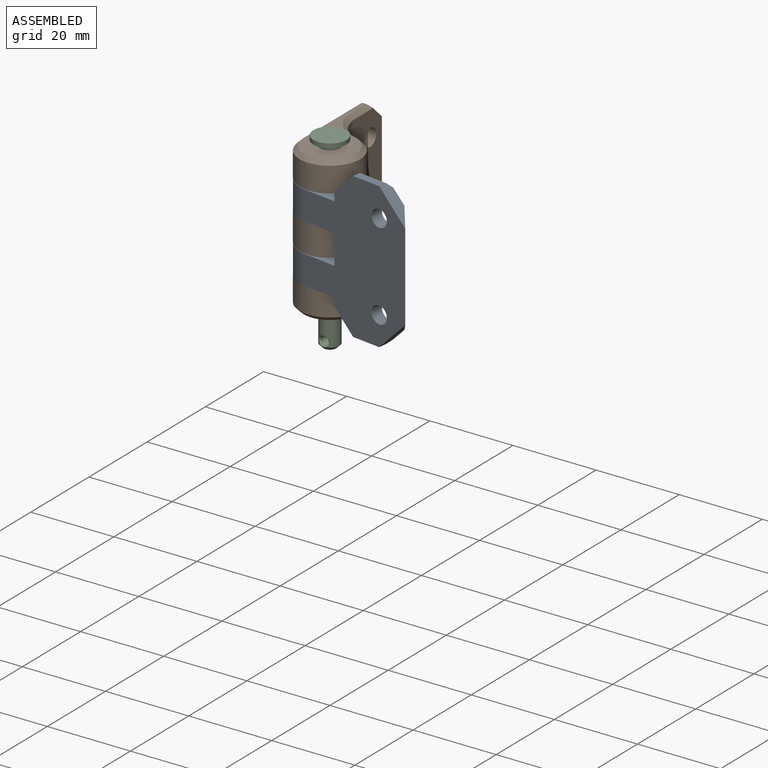
[diagram: assembled view]
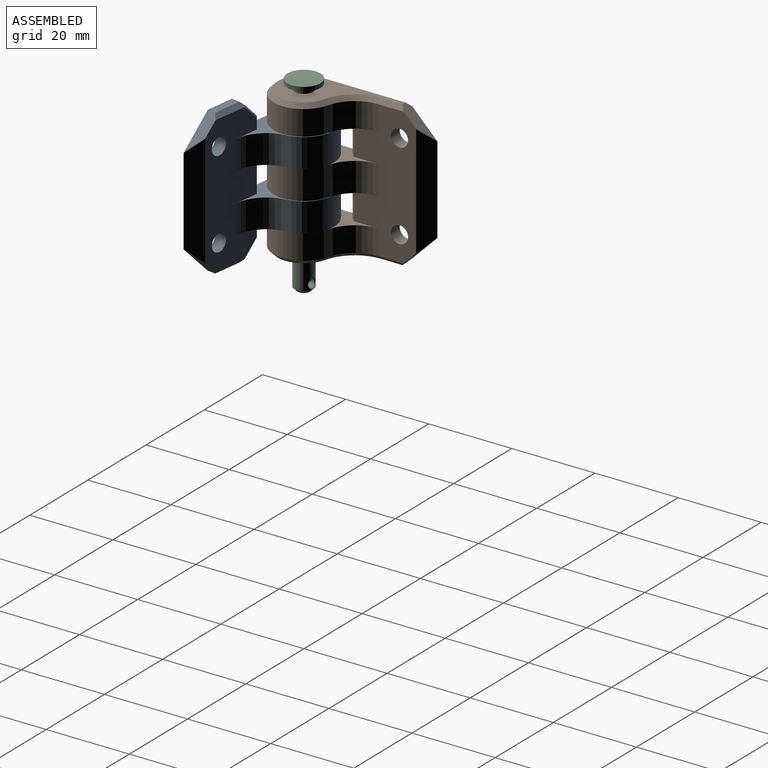
[diagram: assembled view, second angle]
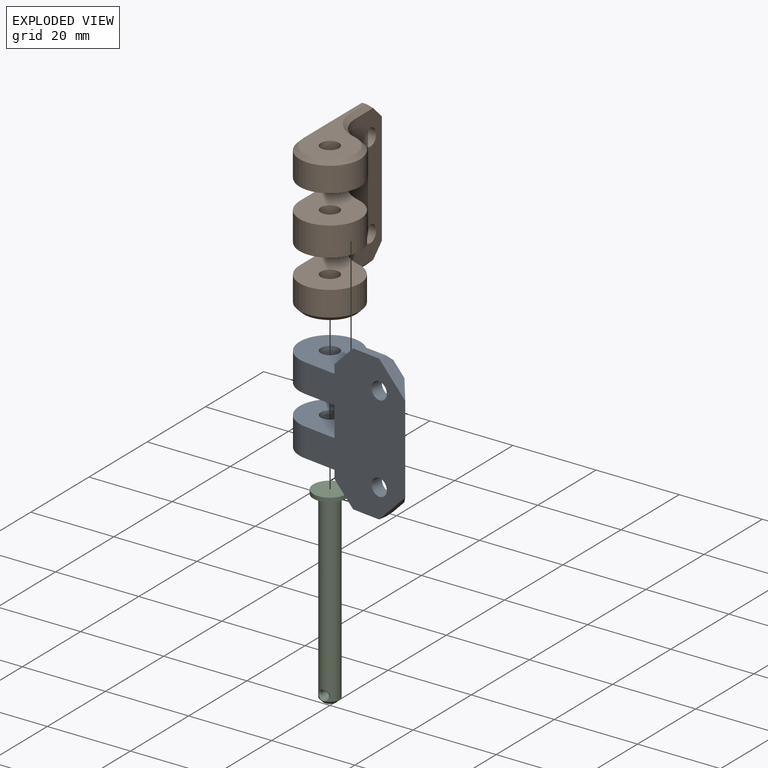
[diagram: exploded view]
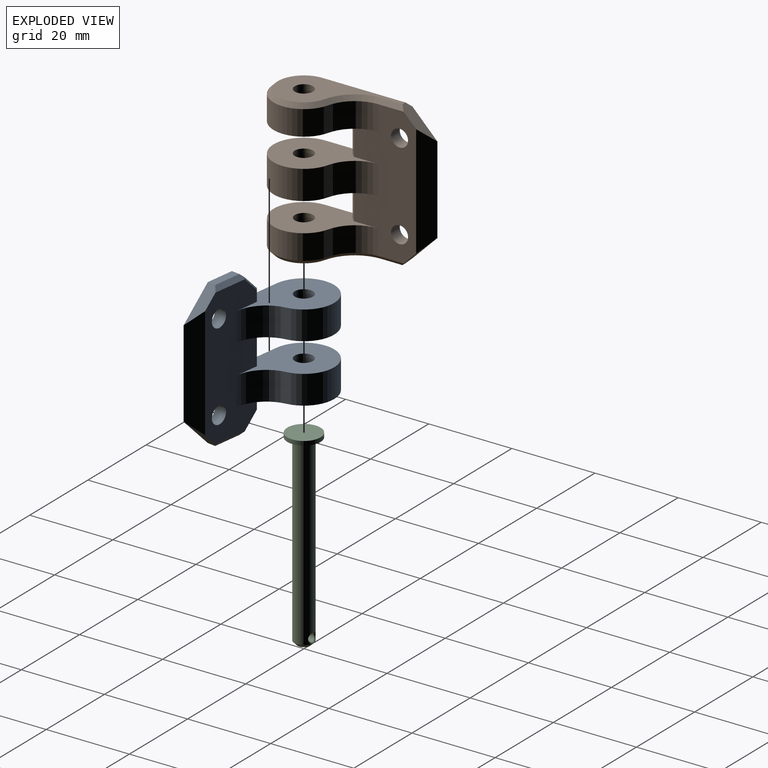
[diagram: exploded view, second angle]
ASSEMBLY  parts=3 mates=2
PART A: 31 faces, bbox 34.3x14.6x35 mm
  f0: plane 35x27mm, normal (0,1,0), area 675mm2, adj f2,f3,f4,f5,f6,f7,f8,f9
  f1: plane 33x15mm, normal (0,-1,0), area 366.4mm2, adj f8,f9,f11,f12,f13,f14,f17,f18
  f2: plane 2x2mm, normal (1,0,0), area 4mm2, adj f0,f12,f22,f27
  f3: plane 7.1x2mm, normal (1,0,0), area 14.2mm2, adj f0,f9,f11,f17
  f4: plane 7x2mm, normal (0,0,1), area 14mm2, adj f0,f19,f23,f26
  f5: plane 7x2mm, normal (0,0,-1), area 14mm2, adj f0,f21,f24,f27
  f6: plane 2.1x2mm, normal (1,0,0), area 4.2mm2, adj f0,f8,f18,f26
  f7: cylinder r=7.3mm len=14.6mm, axis (0,0,-1), area 225.1mm2, adj f0,f8,f9,f14
  f8: plane 22.15x14.6mm, normal (0,0,1), area 177.2mm2, adj f0,f1,f6,f7,f14,f16,f18
  f9: plane 22.15x14.6mm, normal (0,0,-1), area 177.2mm2, adj f0,f1,f3,f7,f14,f16,f17
  f10: cylinder r=7.3mm len=14.6mm, axis (0,0,-1), area 225.1mm2, adj f0,f11,f12,f13
  f11: plane 22.15x14.6mm, normal (0,0,1), area 177.2mm2, adj f0,f1,f3,f10,f13,f15,f17
  f12: plane 22.15x14.6mm, normal (0,0,-1), area 177.2mm2, adj f0,f1,f2,f10,f13,f15,f22
  f13: cylinder r=8mm len=7.76mm, axis (0,0,-1), area 73.2mm2, adj f1,f10,f11,f12
  f14: cylinder r=8mm len=7.76mm, axis (0,0,-1), area 73.2mm2, adj f1,f7,f8,f9
  f15: cylinder r=2.2mm len=6.9mm, axis (0,0,-1), area 95.4mm2, adj f11,f12
  f16: cylinder r=2.2mm len=6.9mm, axis (0,0,-1), area 95.4mm2, adj f8,f9
  f17: plane 7.1x1mm, normal (0.71,-0.71,0), area 10mm2, adj f1,f3,f9,f11
  f18: plane 2.83x1mm, normal (0.71,-0.71,0), area 3.6mm2, adj f1,f6,f8,f25,f26
  f19: plane 8.73x1mm, normal (0,-0.71,0.71), area 11.2mm2, adj f1,f4,f23,f25,f26
  f20: plane 27x3mm, normal (-0.71,-0.71,0), area 101.8mm2, adj f0,f1,f23,f24
  f21: plane 8.73x1mm, normal (0,-0.71,-0.71), area 11.2mm2, adj f1,f5,f24,f27,f28
  f22: plane 2.73x1mm, normal (0.71,-0.71,0), area 3.4mm2, adj f1,f2,f12,f27,f28
  f23: plane 7x7mm, normal (-0.71,0,0.71), area 22.6mm2, adj f0,f1,f4,f19,f20
  f24: plane 7x7mm, normal (-0.71,0,-0.71), area 22.6mm2, adj f0,f1,f5,f20,f21
  f25: plane 3.8x3.8mm, normal (0.41,-0.82,0.41), area 2.3mm2, adj f1,f18,f19,f26
  f26: plane 5x5mm, normal (0.71,0,0.71), area 18.6mm2, adj f0,f4,f6,f18,f19,f25
  f27: plane 5x5mm, normal (0.71,0,-0.71), area 18.6mm2, adj f0,f2,f5,f21,f22,f28
  f28: plane 3.8x3.8mm, normal (0.41,-0.82,-0.41), area 2.3mm2, adj f1,f21,f22,f27
  f29: cylinder r=2.05mm len=4.1mm, axis (0,-1,0), area 38.6mm2, adj f0,f1
  f30: cylinder r=2.05mm len=4.1mm, axis (0,-1,0), area 38.6mm2, adj f0,f1
PART B: 34 faces, bbox 34.3x14.6x35 mm
  f0: plane 33x15mm, normal (0,-1,0), area 348.5mm2, adj f3,f9,f10,f11,f13,f14,f15,f22
  f1: plane 33x27mm, normal (0,1,0), area 716.6mm2, adj f2,f3,f5,f6,f8,f9,f10,f11
  f2: cylinder r=7.3mm len=14.6mm, axis (0,0,-1), area 195.7mm2, adj f1,f3,f13,f20
  f3: plane 22.15x14.6mm, normal (0,0,-1), area 177.2mm2, adj f0,f1,f2,f5,f13,f18,f29
  f4: plane 26.3x12.6mm, normal (0,0,1), area 145.9mm2, adj f18,f19,f20,f21,f22,f30
  f5: plane 7x2mm, normal (-1,0,0), area 14mm2, adj f1,f3,f9,f29
  f6: plane 7x2mm, normal (-1,0,0), area 14mm2, adj f1,f10,f11,f28
  f7: plane 26.3x12.6mm, normal (0,0,-1), area 145.9mm2, adj f16,f24,f25,f26,f27,f31
  f8: cylinder r=7.3mm len=14.6mm, axis (0,0,-1), area 228.3mm2, adj f1,f9,f10,f15
  f9: plane 22.15x14.6mm, normal (0,0,1), area 177.2mm2, adj f0,f1,f5,f8,f15,f17,f29
  f10: plane 22.15x14.6mm, normal (0,0,-1), area 177.2mm2, adj f0,f1,f6,f8,f15,f17,f28
  f11: plane 22.15x14.6mm, normal (0,0,1), area 177.2mm2, adj f0,f1,f6,f12,f14,f16,f28
  f12: cylinder r=7.3mm len=14.6mm, axis (0,0,-1), area 195.7mm2, adj f1,f11,f14,f26
  f13: cylinder r=8mm len=7.76mm, axis (0,0,-1), area 63.7mm2, adj f0,f2,f3,f21
  f14: cylinder r=8mm len=7.76mm, axis (0,0,-1), area 63.7mm2, adj f0,f11,f12,f25
  f15: cylinder r=8mm len=7.76mm, axis (0,0,-1), area 74.3mm2, adj f0,f8,f9,f10
  f16: cylinder r=2.2mm len=7mm, axis (0,0,-1), area 96.8mm2, adj f7,f11
  f17: cylinder r=2.2mm len=7mm, axis (0,0,-1), area 96.8mm2, adj f9,f10
  f18: cylinder r=2.2mm len=7mm, axis (0,0,-1), area 96.8mm2, adj f3,f4
  f19: plane 21x1mm, normal (0,0.71,0.71), area 29mm2, adj f1,f4,f20,f30
  f20: cone r=6.3mm half-angle=45deg, axis (0,0,-1), area 43mm2, adj f2,f4,f19,f21
  f21: cone r=9mm half-angle=45deg, axis (0,0,1), area 15.9mm2, adj f4,f13,f20,f22
  f22: plane 6.15x1mm, normal (0,-0.71,0.71), area 8mm2, adj f0,f4,f21,f30
  f23: plane 27x3mm, normal (0.71,-0.71,0), area 101.8mm2, adj f0,f1,f30,f31
  f24: plane 6.15x1mm, normal (0,-0.71,-0.71), area 8mm2, adj f0,f7,f25,f31
  f25: cone r=9mm half-angle=45deg, axis (0,0,-1), area 15.9mm2, adj f7,f14,f24,f26
  f26: cone r=7.3mm half-angle=45deg, axis (0,0,1), area 43mm2, adj f7,f12,f25,f27
  f27: plane 21x1mm, normal (0,0.71,-0.71), area 29mm2, adj f1,f7,f26,f31
  f28: plane 7x1mm, normal (-0.71,-0.71,0), area 9.9mm2, adj f0,f6,f10,f11
  f29: plane 7x1mm, normal (-0.71,-0.71,0), area 9.9mm2, adj f0,f3,f5,f9
  f30: plane 7x7mm, normal (0.71,0,0.71), area 21.9mm2, adj f0,f1,f4,f19,f22,f23
  f31: plane 7x7mm, normal (0.71,0,-0.71), area 21.9mm2, adj f0,f1,f7,f23,f24,f27
  f32: cylinder r=2.05mm len=4.1mm, axis (0,-1,0), area 38.6mm2, adj f0,f1
  f33: cylinder r=2.05mm len=4.1mm, axis (0,-1,0), area 38.6mm2, adj f0,f1
PART C: 9 faces, bbox 8x8x46 mm
  f0: cylinder r=2.3mm len=44.2mm, axis (0,0,-1), area 628.4mm2, adj f4,f5,f7,f8
  f1: plane 3x3mm, normal (0,0,-1), area 7.1mm2, adj f5
  f2: cylinder r=4mm len=8mm, axis (0,0,-1), area 25.1mm2, adj f3,f4
  f3: plane 8x8mm, normal (0,0,1), area 50.3mm2, adj f2
  f4: plane 8x8mm, normal (0,0,-1), area 33.6mm2, adj f0,f2
  f5: cone r=2.3mm half-angle=45deg, axis (0,0,1), area 13.5mm2, adj f0,f1
  f6: cylinder r=1mm len=4.2mm, axis (0,-1,0), area 26.4mm2, adj f7,f8
  f7: bspline ~2.63x2.4mm, area 2.3mm2, adj f0,f6
  f8: bspline ~2.63x2.4mm, area 2.3mm2, adj f0,f6
PLACE A rot(axis=(0,0,1),172.2deg) t=(-34.58,4.75,1.5)mm
PLACE B rot(axis=(0,0,1),90deg) t=(0,0,1.5)mm
PLACE C at identity fixed
MATE cylindrical C.f0 <-> B.f16  axis (0,0,-1) through (0,0,-7.2)mm
MATE cylindrical A.f15 <-> B.f16  axis (0,0,-1) through (0,0,8.5)mm
